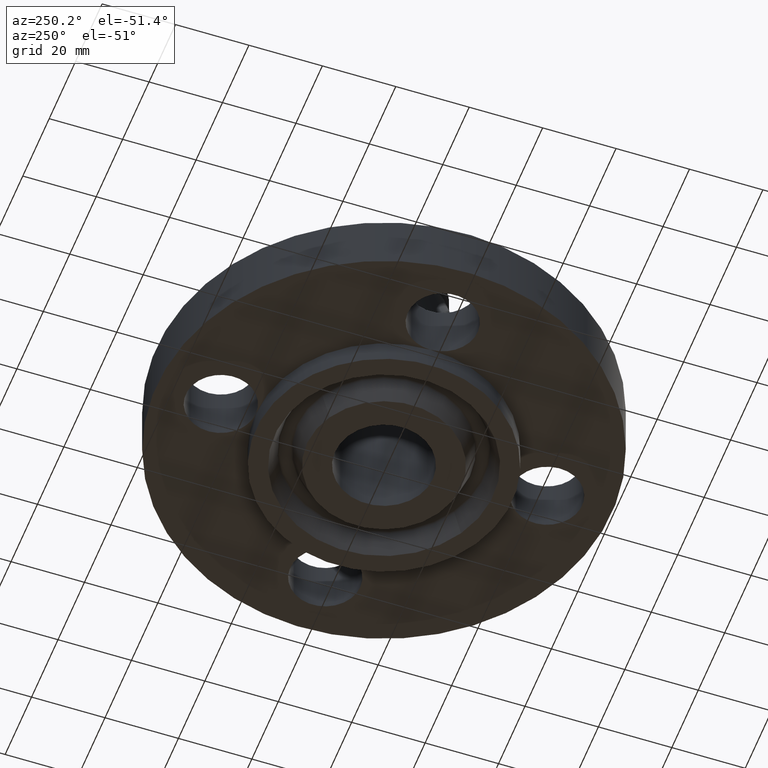
[diagram: clean part render]
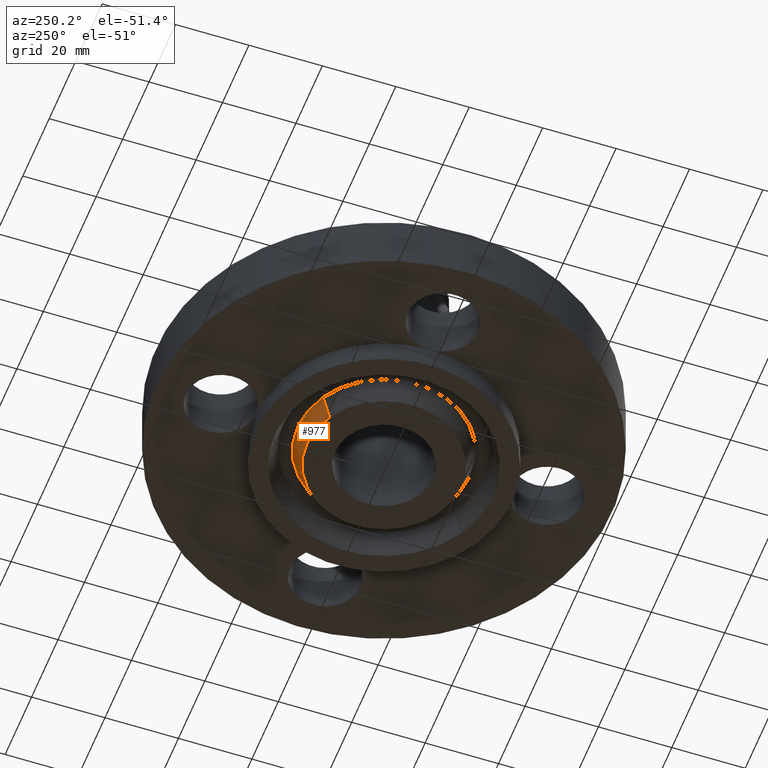
[diagram: same view with one face highlighted and labeled with its STEP entity id]
A machine part, auxiliary view. The second image highlights one B-rep face of the part: STEP entity #977.
In plain terms, the highlighted conical surface has half-angle 23 deg.
Its self-contained STEP definition (entity closure, byte-faithful):
#783=AXIS2_PLACEMENT_3D('Circle Axis2P3D',#781,#782,$) ;
#927=AXIS2_PLACEMENT_3D('Circle Axis2P3D',#925,#926,$) ;
#959=AXIS2_PLACEMENT_3D('Cone Axis2P3D',#956,#957,#958) ;
#781=CARTESIAN_POINT('Axis2P3D Location',(0.,6.99353086378E-017,-0.250000000001)) ;
#785=CARTESIAN_POINT('Vertex',(-0.396964345966,0.726638361248,-0.250000000001)) ;
#787=CARTESIAN_POINT('Vertex',(0.396964345966,-0.726638361248,-0.250000000001)) ;
#922=CARTESIAN_POINT('Vertex',(0.443996713314,-0.812730532203,-0.0188873350169)) ;
#925=CARTESIAN_POINT('Axis2P3D Location',(0.,0.,-0.0188873350169)) ;
#929=CARTESIAN_POINT('Vertex',(-0.443996713314,0.812730532203,-0.0188873350169)) ;
#956=CARTESIAN_POINT('Axis2P3D Location',(0.,0.,-0.310000000001)) ;
#961=CARTESIAN_POINT('Line Origine',(-0.42048052964,0.769684446725,-0.134443667509)) ;
#966=CARTESIAN_POINT('Line Origine',(0.42048052964,-0.769684446725,-0.134443667509)) ;
#782=DIRECTION('Axis2P3D Direction',(0.,0.,-0.0393700787402)) ;
#926=DIRECTION('Axis2P3D Direction',(0.,0.,0.0393700787402)) ;
#957=DIRECTION('Axis2P3D Direction',(0.,0.,0.0393700787402)) ;
#958=DIRECTION('Axis2P3D XDirection',(-0.0188750212049,0.0345504945626,0.)) ;
#962=DIRECTION('Vector Direction',(-0.00737505833565,0.0134999537303,0.0362403485611)) ;
#967=DIRECTION('Vector Direction',(0.00737505833565,-0.0134999537303,0.0362403485611)) ;
#963=VECTOR('Line Direction',#962,0.0393700787402) ;
#968=VECTOR('Line Direction',#967,0.0393700787402) ;
#972=ORIENTED_EDGE('',*,*,#965,.F.) ;
#973=ORIENTED_EDGE('',*,*,#931,.F.) ;
#974=ORIENTED_EDGE('',*,*,#970,.T.) ;
#975=ORIENTED_EDGE('',*,*,#789,.F.) ;
#977=ADVANCED_FACE('PartBody',(#976),#960,.T.) ;
#784=CIRCLE('generated circle',#783,0.828000000003) ;
#928=CIRCLE('generated circle',#927,0.926101505996) ;
#960=CONICAL_SURFACE('Cone',#959,0.802531511031,0.401425727959) ;
#789=EDGE_CURVE('',#786,#788,#784,.T.) ;
#931=EDGE_CURVE('',#923,#930,#928,.T.) ;
#965=EDGE_CURVE('',#930,#786,#964,.F.) ;
#970=EDGE_CURVE('',#923,#788,#969,.F.) ;
#971=EDGE_LOOP('',(#972,#973,#974,#975)) ;
#976=FACE_OUTER_BOUND('',#971,.T.) ;
#964=LINE('Line',#961,#963) ;
#969=LINE('Line',#966,#968) ;
#786=VERTEX_POINT('',#785) ;
#788=VERTEX_POINT('',#787) ;
#923=VERTEX_POINT('',#922) ;
#930=VERTEX_POINT('',#929) ;